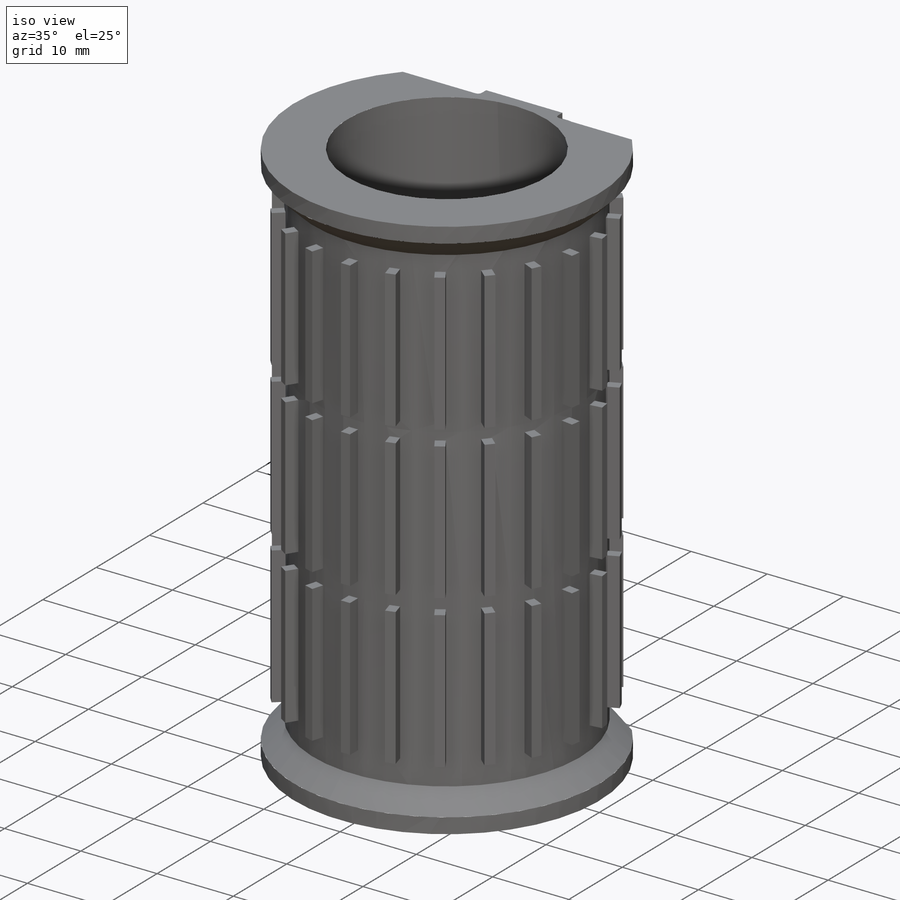
[diagram: iso view]
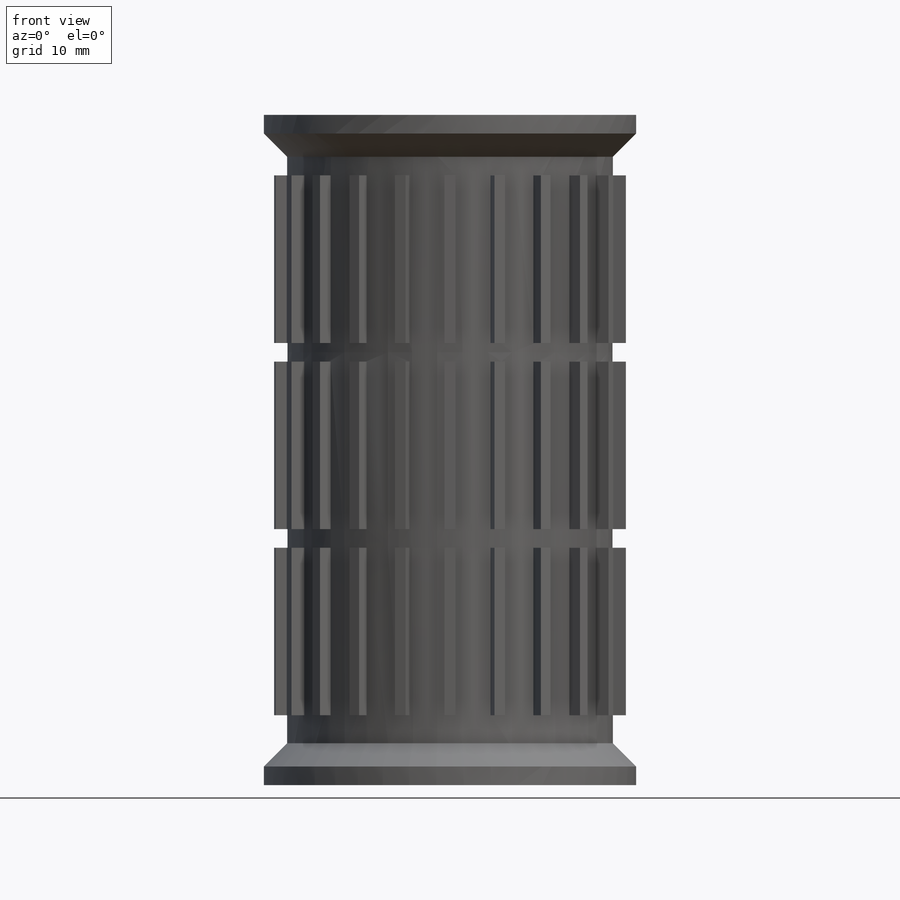
[diagram: front view]
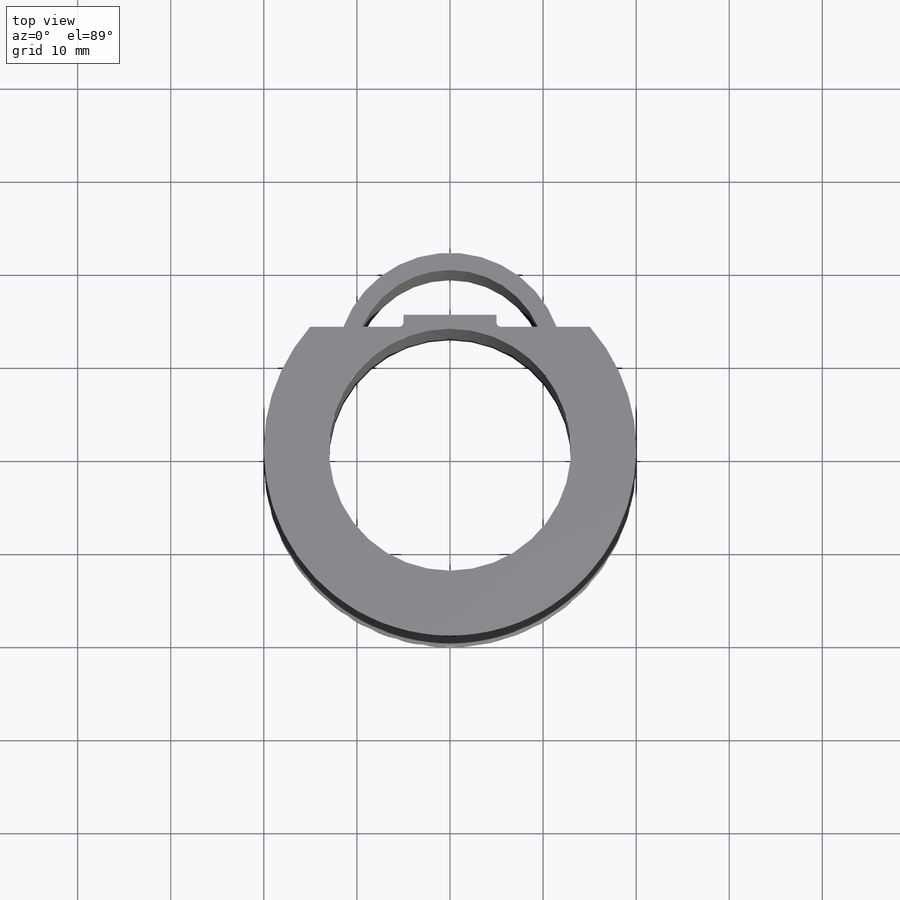
[diagram: top view]
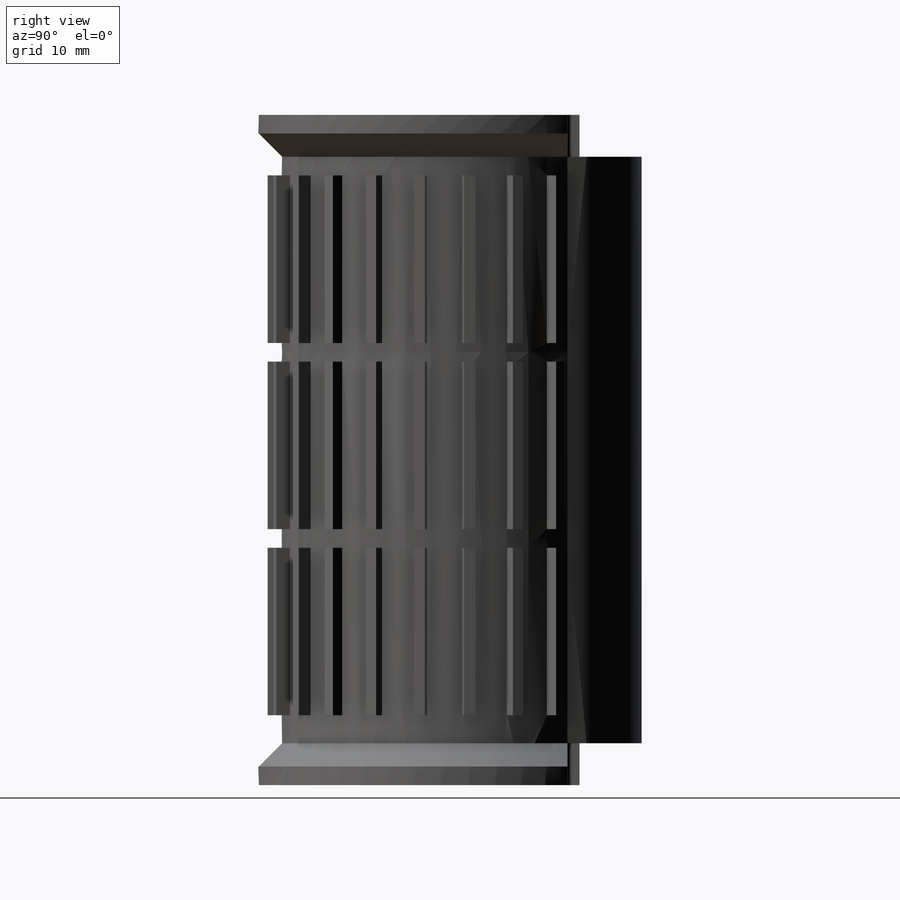
[diagram: right view]
SOLIDWORKS PART (.sldprt)
format: sldprt  version: not decoded by parser v0  size: 470,016 bytes
history: native  units: mm
features: sketch x6, plane x5, extrude x2, material x1, revolve x1, pattern_circular x1, cut_extrude x1, sweep x1, fillet x1 (+10 scaffold rows collapsed)
feature tree (29):
  scaffold x10  (default folders/planes/origin — collapsed)
  material  "材质 <未指定>"
  plane  "前视基准面"
  plane  "上视基准面"
  plane  "右视基准面"
  sketch  "草图1"  dims[D1=2.0mm D2=20.0mm D3=13.0mm D4=17.5mm D5=63.0mm]
  revolve  "旋转1"  Angle=360deg
  plane  "基准面1"  Offset=19mm
  sketch  "草图2"  dims[D1=2.0mm D2=18.0mm D3=1.2mm D4=3.0]
  extrude  "凸台-拉伸1"  [1 undecoded]
  pattern_circular  "阵列(圆周)1"  Count=22 Angle=360deg
  sketch  "草图3"  dims[D1=13.2mm]
  cut_extrude  "切除-拉伸1"  [1 undecoded]
  sketch  "草图4"  dims[D1=14.5mm D2=10.0mm]
  extrude  "凸台-拉伸2"  [1 undecoded]
  sketch  "草图5"  dims[D1=2.0mm]
  plane  "基准面2"  Offset=30mm
  sketch  "草图7"  dims[D1=9.0mm]
  sweep  "扫描1"
  fillet  "圆角1"  Radius=0.5mm
decode coverage: 9 of 13 modeling features carry decoded parameters
note: 3 parameter values undecoded
summary: no parameter record found for 3 features
note: suppression state not decoded; provenance and decode notes live in map.json
